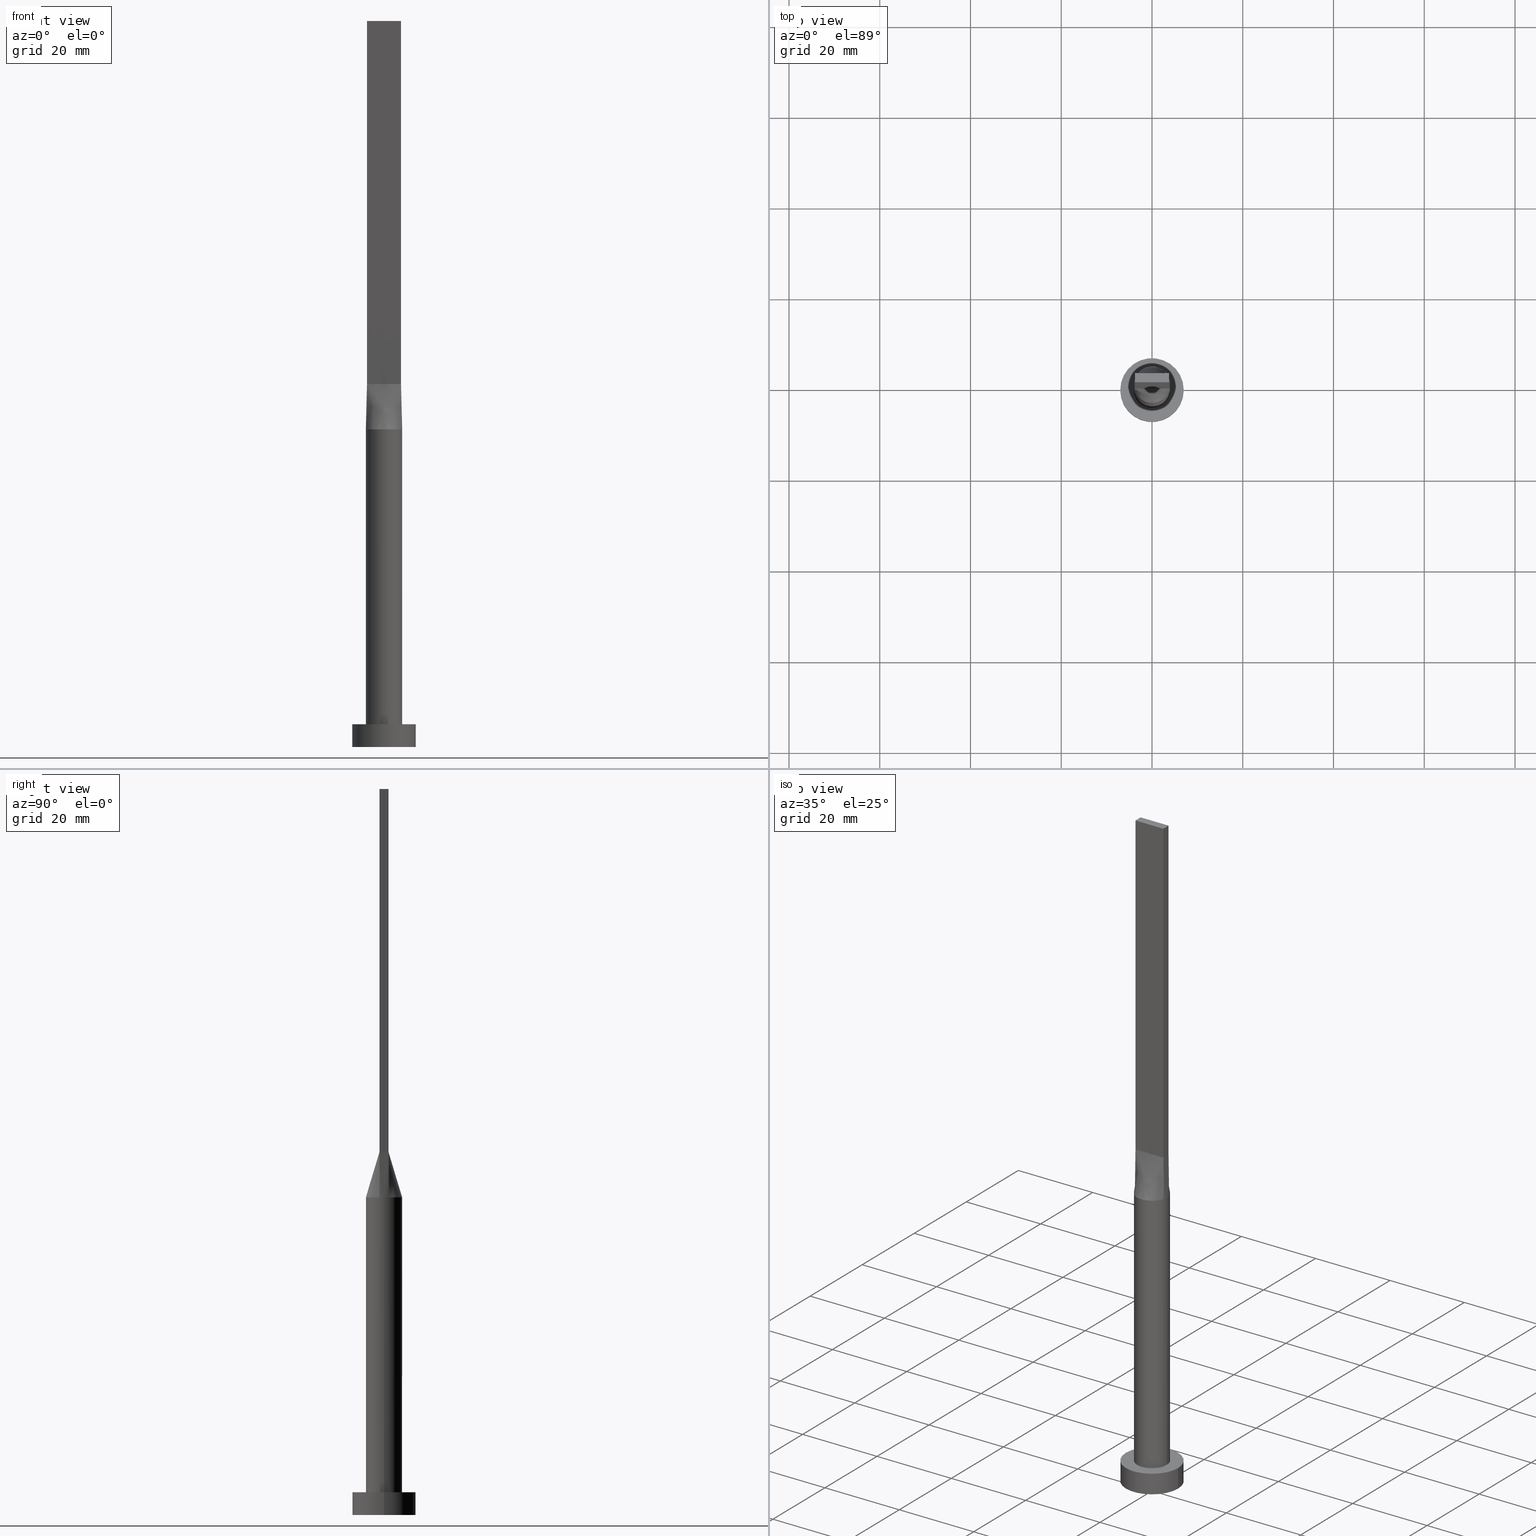
[diagram: canonical four-view strip — front | top / right | iso, engineering-drawing reading convention]
A machine part, canonical four-view strip (front | top / right | iso — engineering-drawing reading convention). The complete STEP part file that produces these views, byte-faithful:
ISO-10303-21;
HEADER;
FILE_DESCRIPTION (( 'STEP AP203' ),
    '1' );
FILE_NAME ('2704.STEP',
    '2023-02-13T09:36:03',
    ( '' ),
    ( '' ),
    'SwSTEP 2.0',
    'SolidWorks 2019',
    '' );
FILE_SCHEMA (( 'CONFIG_CONTROL_DESIGN' ));
ENDSEC;

DATA;
#1 = CARTESIAN_POINT ( 'NONE',  ( 3.750000000000000000, -0.9999999999999997780, 160.0000000000000000 ) ) ;
#2 = VECTOR ( 'NONE', #314, 1000.000000000000000 ) ;
#3 = ORIENTED_EDGE ( 'NONE', *, *, #150, .T. ) ;
#4 = APPLICATION_PROTOCOL_DEFINITION ( 'international standard', 'config_control_design', 1994, #134 ) ;
#5 = DIRECTION ( 'NONE',  ( -1.000000000000000000, 0.000000000000000000, 0.000000000000000000 ) ) ;
#6 = VERTEX_POINT ( 'NONE', #203 ) ;
#7 = LINE ( 'NONE', #278, #491 ) ;
#8 = DIRECTION ( 'NONE',  ( -0.000000000000000000, -0.000000000000000000, -1.000000000000000000 ) ) ;
#9 =( NAMED_UNIT ( * ) SI_UNIT ( $, .STERADIAN. ) SOLID_ANGLE_UNIT ( ) );
#10 = LINE ( 'NONE', #549, #86 ) ;
#11 = ORIENTED_EDGE ( 'NONE', *, *, #418, .F. ) ;
#12 = EDGE_CURVE ( 'NONE', #388, #6, #452, .T. ) ;
#13 = PERSON_AND_ORGANIZATION ( #241, #344 ) ;
#14 = CARTESIAN_POINT ( 'NONE',  ( 2.187499999999999556, 1.000000000000000000, 79.99999999999998579 ) ) ;
#15 = ORIENTED_EDGE ( 'NONE', *, *, #418, .T. ) ;
#16 = APPROVAL_DATE_TIME ( #48, #244 ) ;
#17 = EDGE_CURVE ( 'NONE', #472, #421, #157, .T. ) ;
#18 = EDGE_CURVE ( 'NONE', #197, #148, #483, .T. ) ;
#19 = CARTESIAN_POINT ( 'NONE',  ( -2.500000000000000444, 1.000000000000000000, 79.99999999999998579 ) ) ;
#20 = ORIENTED_EDGE ( 'NONE', *, *, #457, .T. ) ;
#21 = COORDINATED_UNIVERSAL_TIME_OFFSET ( 1, 0, .AHEAD. ) ;
#22 = VERTEX_POINT ( 'NONE', #480 ) ;
#23 = ORIENTED_EDGE ( 'NONE', *, *, #142, .T. ) ;
#24 = COORDINATED_UNIVERSAL_TIME_OFFSET ( 1, 0, .AHEAD. ) ;
#25 = ORIENTED_EDGE ( 'NONE', *, *, #394, .T. ) ;
#26 = CARTESIAN_POINT ( 'NONE',  ( 0.5121855420560009753, 4.000000000000000888, 70.00000000000000000 ) ) ;
#27 = AXIS2_PLACEMENT_3D ( 'NONE', #455, #453, #5 ) ;
#28 = CARTESIAN_POINT ( 'NONE',  ( 3.953459813730019423, -0.6987003947724502728, 70.00000000000001421 ) ) ;
#29 = CC_DESIGN_PERSON_AND_ORGANIZATION_ASSIGNMENT ( #201, #413, ( #159 ) ) ;
#30 = CARTESIAN_POINT ( 'NONE',  ( -4.000000000000000000, 0.3494497975066826467, 69.99999999999998579 ) ) ;
#31 = VECTOR ( 'NONE', #352, 1000.000000000000000 ) ;
#32 = CIRCLE ( 'NONE', #52, 4.000000000000000000 ) ;
#33 = CARTESIAN_POINT ( 'NONE',  ( -0.3125000000000197065, -0.9999999999999993339, 80.00000000000000000 ) ) ;
#34 = DIRECTION ( 'NONE',  ( -0.000000000000000000, -0.000000000000000000, -1.000000000000000000 ) ) ;
#35 = CARTESIAN_POINT ( 'NONE',  ( 1.249999999999982236, -0.9999999999999995559, 79.99999999999998579 ) ) ;
#36 = CARTESIAN_POINT ( 'NONE',  ( -3.750000000000000000, -0.9999999999999991118, 160.0000000000000000 ) ) ;
#37 = CARTESIAN_POINT ( 'NONE',  ( -2.187500000000013323, -0.9999999999999993339, 79.99999999999998579 ) ) ;
#38 = LINE ( 'NONE', #358, #482 ) ;
#39 = CARTESIAN_POINT ( 'NONE',  ( 3.749999999999999556, -0.6666666666666661856, 79.99999999999998579 ) ) ;
#40 = APPROVAL_PERSON_ORGANIZATION ( #345, #511, #566 ) ;
#41 = EDGE_CURVE ( 'NONE', #472, #430, #343, .T. ) ;
#42 = DIRECTION ( 'NONE',  ( 0.000000000000000000, 0.000000000000000000, 1.000000000000000000 ) ) ;
#43 = FACE_BOUND ( 'NONE', #297, .T. ) ;
#44 = CARTESIAN_POINT ( 'NONE',  ( 0.000000000000000000, 0.000000000000000000, 0.000000000000000000 ) ) ;
#45 = FACE_OUTER_BOUND ( 'NONE', #470, .T. ) ;
#46 = AXIS2_PLACEMENT_3D ( 'NONE', #443, #485, #263 ) ;
#47 = ORIENTED_EDGE ( 'NONE', *, *, #12, .F. ) ;
#48 = DATE_AND_TIME ( #424, #328 ) ;
#49 = VECTOR ( 'NONE', #368, 1000.000000000000114 ) ;
#50 = CC_DESIGN_PERSON_AND_ORGANIZATION_ASSIGNMENT ( #560, #522, ( #365 ) ) ;
#51 = CARTESIAN_POINT ( 'NONE',  ( 3.864939758404985160, 1.030650602241328873, 70.00000000000000000 ) ) ;
#52 = AXIS2_PLACEMENT_3D ( 'NONE', #224, #262, #445 ) ;
#53 = DIRECTION ( 'NONE',  ( 1.000000000000000000, 0.000000000000000000, -0.000000000000000000 ) ) ;
#54 = LINE ( 'NONE', #100, #49 ) ;
#55 = ORIENTED_EDGE ( 'NONE', *, *, #317, .T. ) ;
#56 = CARTESIAN_POINT ( 'NONE',  ( 3.865212754195084699, 1.030724393897464841, 70.00000000000000000 ) ) ;
#57 = DIRECTION ( 'NONE',  ( 1.000000000000000000, 0.000000000000000000, 0.000000000000000000 ) ) ;
#58 = ORIENTED_EDGE ( 'NONE', *, *, #577, .T. ) ;
#59 = DIRECTION ( 'NONE',  ( -1.000000000000000000, -0.000000000000000000, -0.000000000000000000 ) ) ;
#60 = EDGE_LOOP ( 'NONE', ( #25, #419, #558, #15 ) ) ;
#61 = EDGE_CURVE ( 'NONE', #141, #547, #78, .T. ) ;
#62 = CIRCLE ( 'NONE', #490, 4.000000000000000000 ) ;
#63 = COORDINATED_UNIVERSAL_TIME_OFFSET ( 1, 0, .AHEAD. ) ;
#64 = ADVANCED_FACE ( 'NONE', ( #222 ), #539, .T. ) ;
#65 = CARTESIAN_POINT ( 'NONE',  ( -1.562500000000000444, 1.000000000000000000, 79.99999999999998579 ) ) ;
#66 = EDGE_LOOP ( 'NONE', ( #544, #23, #332, #205, #208 ) ) ;
#67 = CALENDAR_DATE ( 2023, 13, 2 ) ;
#68 = ORIENTED_EDGE ( 'NONE', *, *, #377, .T. ) ;
#69 = EDGE_CURVE ( 'NONE', #421, #472, #518, .T. ) ;
#70 = ORIENTED_EDGE ( 'NONE', *, *, #259, .T. ) ;
#71 = EDGE_LOOP ( 'NONE', ( #20, #11, #468, #282 ) ) ;
#72 = CARTESIAN_POINT ( 'NONE',  ( -3.749999999999999556, -0.6666666666666657415, 79.99999999999998579 ) ) ;
#73 = CARTESIAN_POINT ( 'NONE',  ( 2.346407003458400364, -3.270103945996944095, 70.00000000000001421 ) ) ;
#74 = PERSON_AND_ORGANIZATION ( #241, #344 ) ;
#75 = CARTESIAN_POINT ( 'NONE',  ( -0.6250000000000005551, 1.000000000000000000, 79.99999999999998579 ) ) ;
#76 = CARTESIAN_POINT ( 'NONE',  ( 2.187499999999986677, -0.9999999999999995559, 79.99999999999998579 ) ) ;
#77 = CARTESIAN_POINT ( 'NONE',  ( -3.750000000000000000, 1.000000000000000000, 80.00000000000000000 ) ) ;
#78 = LINE ( 'NONE', #310, #249 ) ;
#79 = CARTESIAN_POINT ( 'NONE',  ( -3.750000000000000000, -0.9999999999999991118, 80.00000000000000000 ) ) ;
#80 = CARTESIAN_POINT ( 'NONE',  ( 1.023074425454087555, -3.898373771260455811, 70.00000000000001421 ) ) ;
#81 = DIRECTION ( 'NONE',  ( -0.000000000000000000, 1.000000000000000000, -0.000000000000000000 ) ) ;
#82 = AXIS2_PLACEMENT_3D ( 'NONE', #524, #530, #402 ) ;
#83 = FACE_OUTER_BOUND ( 'NONE', #243, .T. ) ;
#84 = DIRECTION ( 'NONE',  ( 1.000000000000000000, -8.673617379884035472E-17, 0.000000000000000000 ) ) ;
#85 = PRODUCT_DEFINITION_SHAPE ( 'NONE', 'NONE',  #159 ) ;
#86 = VECTOR ( 'NONE', #152, 1000.000000000000000 ) ;
#87 = CARTESIAN_POINT ( 'NONE',  ( 3.750000000000000000, 1.000000000000000000, 80.00000000000000000 ) ) ;
#88 = LOCAL_TIME ( 10, 36, 3.000000000000000000, #21 ) ;
#89 = VERTEX_POINT ( 'NONE', #532 ) ;
#90 = FACE_OUTER_BOUND ( 'NONE', #463, .T. ) ;
#91 = CARTESIAN_POINT ( 'NONE',  ( -3.267840578657194239, 2.338604872288698289, 70.00000000000001421 ) ) ;
#92 = DIRECTION ( 'NONE',  ( 0.000000000000000000, 0.000000000000000000, 1.000000000000000000 ) ) ;
#93 = CLOSED_SHELL ( 'NONE', ( #122, #448, #477, #186, #494, #151, #64, #103, #252, #194, #579, #173, #294, #538, #315 ) ) ;
#94 = ORIENTED_EDGE ( 'NONE', *, *, #357, .F. ) ;
#95 = CARTESIAN_POINT ( 'NONE',  ( 3.750000000000000000, -0.9999999999999997780, 160.0000000000000000 ) ) ;
#96 = CARTESIAN_POINT ( 'NONE',  ( 3.749999999999999556, 0.3333333333333339810, 79.99999999999998579 ) ) ;
#97 = VERTEX_POINT ( 'NONE', #487 ) ;
#98 = AXIS2_PLACEMENT_3D ( 'NONE', #407, #578, #492 ) ;
#99 = DIRECTION ( 'NONE',  ( -1.000000000000000000, 0.000000000000000000, 0.000000000000000000 ) ) ;
#100 = CARTESIAN_POINT ( 'NONE',  ( -3.807469879202492802, -1.015325301120663548, 75.00000000000001421 ) ) ;
#101 = DIRECTION ( 'NONE',  ( 1.000000000000000000, 0.000000000000000000, 0.000000000000000000 ) ) ;
#102 = CARTESIAN_POINT ( 'NONE',  ( -3.653499896451231521, 1.673258289339058180, 70.00000000000001421 ) ) ;
#103 = ADVANCED_FACE ( 'NONE', ( #83 ), #397, .T. ) ;
#104 = VERTEX_POINT ( 'NONE', #185 ) ;
#105 = DIRECTION ( 'NONE',  ( 0.000000000000000000, 0.000000000000000000, 1.000000000000000000 ) ) ;
#106 = CARTESIAN_POINT ( 'NONE',  ( -2.187500000000000444, 1.000000000000000000, 79.99999999999998579 ) ) ;
#107 = ORIENTED_EDGE ( 'NONE', *, *, #223, .T. ) ;
#108 = PERSON_AND_ORGANIZATION_ROLE ( 'classification_officer' ) ;
#109 = AXIS2_PLACEMENT_3D ( 'NONE', #327, #367, #192 ) ;
#110 = CARTESIAN_POINT ( 'NONE',  ( -3.267840578657194239, 2.338604872288698289, 70.00000000000001421 ) ) ;
#111 = EDGE_LOOP ( 'NONE', ( #153, #239, #431, #55 ) ) ;
#112 = DATE_TIME_ROLE ( 'classification_date' ) ;
#113 = EDGE_LOOP ( 'NONE', ( #277, #512, #340, #156 ) ) ;
#114 = CALENDAR_DATE ( 2023, 13, 2 ) ;
#115 = VERTEX_POINT ( 'NONE', #1 ) ;
#116 = APPROVAL_PERSON_ORGANIZATION ( #204, #574, #469 ) ;
#117 = EDGE_CURVE ( 'NONE', #148, #515, #576, .T. ) ;
#118 = CARTESIAN_POINT ( 'NONE',  ( -2.500000000000011102, -0.9999999999999991118, 79.99999999999998579 ) ) ;
#119 = CARTESIAN_POINT ( 'NONE',  ( 3.864939758404985160, 1.030650602241329539, 70.00000000000000000 ) ) ;
#120 = EDGE_CURVE ( 'NONE', #505, #22, #189, .T. ) ;
#121 = CARTESIAN_POINT ( 'NONE',  ( 3.750000000000000000, -1.000000000000000000, 80.00000000000000000 ) ) ;
#122 = ADVANCED_FACE ( 'NONE', ( #180 ), #542, .T. ) ;
#123 = CARTESIAN_POINT ( 'NONE',  ( -3.953459813730019423, 0.6987003947724497177, 70.00000000000001421 ) ) ;
#124 = CARTESIAN_POINT ( 'NONE',  ( -3.781952206537765981, -1.341853921743402900, 70.00000000000001421 ) ) ;
#125 = DIRECTION ( 'NONE',  ( 0.000000000000000000, 0.000000000000000000, 1.000000000000000000 ) ) ;
#126 = VECTOR ( 'NONE', #318, 1000.000000000000000 ) ;
#127 = DIRECTION ( 'NONE',  ( -0.000000000000000000, -0.000000000000000000, -1.000000000000000000 ) ) ;
#128 = PRODUCT_RELATED_PRODUCT_CATEGORY ( 'detail', '', ( #216 ) ) ;
#129 = PLANE ( 'NONE',  #212 ) ;
#130 = CARTESIAN_POINT ( 'NONE',  ( 3.781952206537765981, -1.341853921743404232, 70.00000000000001421 ) ) ;
#131 = CARTESIAN_POINT ( 'NONE',  ( 7.000000000000000000, 8.572527594031473190E-16, 0.000000000000000000 ) ) ;
#132 = PLANE ( 'NONE',  #176 ) ;
#133 = FACE_OUTER_BOUND ( 'NONE', #362, .T. ) ;
#134 = APPLICATION_CONTEXT ( 'configuration controlled 3d designs of mechanical parts and assemblies' ) ;
#135 = CC_DESIGN_PERSON_AND_ORGANIZATION_ASSIGNMENT ( #13, #198, ( #216 ) ) ;
#136 = AXIS2_PLACEMENT_3D ( 'NONE', #36, #541, #439 ) ;
#137 = CARTESIAN_POINT ( 'NONE',  ( -3.781952206537765537, 1.341853921743403788, 70.00000000000001421 ) ) ;
#138 = EDGE_LOOP ( 'NONE', ( #386, #226, #246, #209 ) ) ;
#139 = DIRECTION ( 'NONE',  ( 0.000000000000000000, 0.000000000000000000, 1.000000000000000000 ) ) ;
#140 = CARTESIAN_POINT ( 'NONE',  ( 0.000000000000000000, 0.000000000000000000, 70.00000000000000000 ) ) ;
#141 = VERTEX_POINT ( 'NONE', #143 ) ;
#142 = EDGE_CURVE ( 'NONE', #296, #104, #528, .T. ) ;
#143 = CARTESIAN_POINT ( 'NONE',  ( 3.865244591400370577, -1.030732999276501527, 70.00000000000000000 ) ) ;
#144 = VERTEX_POINT ( 'NONE', #500 ) ;
#145 = FACE_OUTER_BOUND ( 'NONE', #60, .T. ) ;
#146 = CARTESIAN_POINT ( 'NONE',  ( -3.750000000000000000, -0.9999999999999991118, 160.0000000000000000 ) ) ;
#147 = AXIS2_PLACEMENT_3D ( 'NONE', #529, #139, #171 ) ;
#148 = VERTEX_POINT ( 'NONE', #322 ) ;
#149 = VECTOR ( 'NONE', #235, 1000.000000000000114 ) ;
#150 = EDGE_CURVE ( 'NONE', #97, #430, #555, .T. ) ;
#151 = ADVANCED_FACE ( 'NONE', ( #45 ), #534, .T. ) ;
#152 = DIRECTION ( 'NONE',  ( 1.000000000000000000, -8.673617379884035472E-17, 0.000000000000000000 ) ) ;
#153 = ORIENTED_EDGE ( 'NONE', *, *, #18, .T. ) ;
#154 = DIRECTION ( 'NONE',  ( 0.000000000000000000, 0.000000000000000000, 1.000000000000000000 ) ) ;
#155 = CARTESIAN_POINT ( 'NONE',  ( -3.009488128496037529, 2.672487015486668671, 69.99999999999998579 ) ) ;
#156 = ORIENTED_EDGE ( 'NONE', *, *, #347, .F. ) ;
#157 = CIRCLE ( 'NONE', #46, 7.000000000000000000 ) ;
#158 = CARTESIAN_POINT ( 'NONE',  ( 3.124999999999999112, 1.000000000000000000, 79.99999999999998579 ) ) ;
#159 = PRODUCT_DEFINITION ( 'NEZN�M�', '', #365, #206 ) ;
#160 = DIRECTION ( 'NONE',  ( 0.000000000000000000, 0.000000000000000000, 1.000000000000000000 ) ) ;
#161 = APPROVAL_STATUS ( 'not_yet_approved' ) ;
#162 = ORIENTED_EDGE ( 'NONE', *, *, #259, .F. ) ;
#163 = ORIENTED_EDGE ( 'NONE', *, *, #383, .T. ) ;
#164 = UNCERTAINTY_MEASURE_WITH_UNIT (LENGTH_MEASURE( 1.000000000000000082E-05 ), #545, 'distance_accuracy_value', 'NONE');
#165 = CARTESIAN_POINT ( 'NONE',  ( -2.346407003458402141, -3.270103945996943651, 69.99999999999998579 ) ) ;
#166 = CARTESIAN_POINT ( 'NONE',  ( 2.499999999999999112, 1.000000000000000000, 79.99999999999998579 ) ) ;
#167 = EDGE_CURVE ( 'NONE', #456, #104, #54, .T. ) ;
#168 = CARTESIAN_POINT ( 'NONE',  ( -3.864939758404985604, -1.030650602241328206, 70.00000000000000000 ) ) ;
#169 = DIRECTION ( 'NONE',  ( 0.000000000000000000, 0.000000000000000000, 1.000000000000000000 ) ) ;
#170 = CARTESIAN_POINT ( 'NONE',  ( -1.940702937457744692, -3.532374760555929250, 70.00000000000000000 ) ) ;
#171 = DIRECTION ( 'NONE',  ( 1.000000000000000000, 0.000000000000000000, 0.000000000000000000 ) ) ;
#172 = CARTESIAN_POINT ( 'NONE',  ( 1.562499999999983569, -0.9999999999999995559, 79.99999999999998579 ) ) ;
#173 = ADVANCED_FACE ( 'NONE', ( #493 ), #273, .F. ) ;
#174 = B_SPLINE_SURFACE_WITH_KNOTS ( 'NONE', 3, 1, ( 
 ( #119, #564 ),
 ( #481, #479 ),
 ( #390, #158 ),
 ( #238, #166 ),
 ( #425, #14 ),
 ( #199, #378 ),
 ( #290, #331 ),
 ( #349, #346 ),
 ( #26, #202 ),
 ( #510, #420 ),
 ( #551, #75 ),
 ( #523, #373 ),
 ( #240, #65 ),
 ( #155, #106 ),
 ( #110, #19 ),
 ( #102, #334 ),
 ( #380, #467 ),
 ( #210, #462 ) ),
 .UNSPECIFIED., .F., .F., .F.,
 ( 4, 2, 2, 2, 2, 2, 2, 2, 4 ),
 ( 2, 2 ),
 ( 0.000000000000000000, 0.1250000000000000000, 0.2500000000000000000, 0.3750000000000000000, 0.5000000000000000000, 0.6250000000000000000, 0.7500000000000000000, 0.8750000000000000000, 1.000000000000000000 ),
 ( 0.000000000000000000, 1.000000000000000000 ),
 .UNSPECIFIED. ) ;
#175 = LINE ( 'NONE', #77, #31 ) ;
#176 = AXIS2_PLACEMENT_3D ( 'NONE', #225, #316, #580 ) ;
#177 = AXIS2_PLACEMENT_3D ( 'NONE', #501, #509, #275 ) ;
#178 = DIRECTION ( 'NONE',  ( 1.000000000000000000, 0.000000000000000000, 0.000000000000000000 ) ) ;
#179 = CARTESIAN_POINT ( 'NONE',  ( -3.750000000000000000, 1.000000000000000000, 160.0000000000000000 ) ) ;
#180 = FACE_OUTER_BOUND ( 'NONE', #191, .T. ) ;
#181 = CARTESIAN_POINT ( 'NONE',  ( 3.750000000000000000, 1.000000000000000000, 80.00000000000000000 ) ) ;
#182 = EDGE_CURVE ( 'NONE', #144, #456, #546, .T. ) ;
#183 = CARTESIAN_POINT ( 'NONE',  ( 3.865212754195084699, 1.030724393897464841, 70.00000000000000000 ) ) ;
#184 = DIRECTION ( 'NONE',  ( 1.000000000000000000, -6.217248937900876626E-15, 0.000000000000000000 ) ) ;
#185 = CARTESIAN_POINT ( 'NONE',  ( -3.865220763612065902, -1.030726602927787949, 70.00000000000000000 ) ) ;
#186 = ADVANCED_FACE ( 'NONE', ( #43, #411 ), #132, .T. ) ;
#187 = ORIENTED_EDGE ( 'NONE', *, *, #520, .T. ) ;
#188 = CARTESIAN_POINT ( 'NONE',  ( 4.000000000000000000, -1.256865613583667397E-17, 70.00000000000000000 ) ) ;
#189 = B_SPLINE_CURVE_WITH_KNOTS ( 'NONE', 3,
 ( #183, #276, #361, #537, #408, #450, #489, #234, #504, #543, #269, #190, #366, #193, #91, #406, #137, #319 ),
 .UNSPECIFIED., .F., .F.,
 ( 4, 2, 2, 2, 2, 2, 2, 2, 4 ),
 ( 0.000000000000000000, 0.1250000000000000000, 0.2500000000000000000, 0.3750000000000000000, 0.5000000000000000000, 0.6250000000000000000, 0.7500000000000000000, 0.8750000000000000000, 1.000000000000000000 ),
 .UNSPECIFIED. ) ;
#190 = CARTESIAN_POINT ( 'NONE',  ( -1.940702937457743138, 3.532374760555930582, 69.99999999999998579 ) ) ;
#191 = EDGE_LOOP ( 'NONE', ( #426, #163, #423, #162, #447, #288 ) ) ;
#192 = DIRECTION ( 'NONE',  ( 1.000000000000000000, 0.000000000000000000, 0.000000000000000000 ) ) ;
#193 = CARTESIAN_POINT ( 'NONE',  ( -3.009488128496037529, 2.672487015486668671, 69.99999999999998579 ) ) ;
#194 = ADVANCED_FACE ( 'NONE', ( #303 ), #174, .T. ) ;
#195 = CARTESIAN_POINT ( 'NONE',  ( -3.864939758404985604, -1.030650602241328428, 70.00000000000000000 ) ) ;
#196 = VECTOR ( 'NONE', #329, 1000.000000000000000 ) ;
#197 = VERTEX_POINT ( 'NONE', #257 ) ;
#198 = PERSON_AND_ORGANIZATION_ROLE ( 'design_owner' ) ;
#199 = CARTESIAN_POINT ( 'NONE',  ( 2.346407003458400808, 3.270103945996944983, 69.99999999999998579 ) ) ;
#200 = ORIENTED_EDGE ( 'NONE', *, *, #383, .F. ) ;
#201 = PERSON_AND_ORGANIZATION ( #241, #344 ) ;
#202 = CARTESIAN_POINT ( 'NONE',  ( 0.3124999999999995004, 1.000000000000000000, 80.00000000000000000 ) ) ;
#203 = CARTESIAN_POINT ( 'NONE',  ( -4.000000000000000000, 0.000000000000000000, 5.000000000000000000 ) ) ;
#204 = PERSON_AND_ORGANIZATION ( #241, #344 ) ;
#205 = ORIENTED_EDGE ( 'NONE', *, *, #377, .F. ) ;
#206 = DESIGN_CONTEXT ( 'detailed design', #526, 'design' ) ;
#207 = VECTOR ( 'NONE', #433, 1000.000000000000000 ) ;
#208 = ORIENTED_EDGE ( 'NONE', *, *, #502, .F. ) ;
#209 = ORIENTED_EDGE ( 'NONE', *, *, #167, .T. ) ;
#210 = CARTESIAN_POINT ( 'NONE',  ( -3.864939758404985604, 1.030650602241328428, 70.00000000000000000 ) ) ;
#211 = CARTESIAN_POINT ( 'NONE',  ( 3.749999999999999556, -0.3333333333333326487, 79.99999999999998579 ) ) ;
#212 = AXIS2_PLACEMENT_3D ( 'NONE', #405, #125, #569 ) ;
#213 = CARTESIAN_POINT ( 'NONE',  ( -3.999999999999999112, -0.3494497975066816475, 69.99999999999998579 ) ) ;
#214 = CARTESIAN_POINT ( 'NONE',  ( -0.5121855420560018635, -4.000000000000000000, 70.00000000000000000 ) ) ;
#215 = LINE ( 'NONE', #437, #291 ) ;
#216 = PRODUCT ( '2704', '2704', '', ( #285 ) ) ;
#217 = CARTESIAN_POINT ( 'NONE',  ( 3.653499896451230633, -1.673258289339059068, 70.00000000000001421 ) ) ;
#218 = FACE_OUTER_BOUND ( 'NONE', #113, .T. ) ;
#219 = CARTESIAN_POINT ( 'NONE',  ( -0.6250000000000193179, -0.9999999999999993339, 79.99999999999998579 ) ) ;
#220 = FACE_OUTER_BOUND ( 'NONE', #111, .T. ) ;
#221 =( GEOMETRIC_REPRESENTATION_CONTEXT ( 3 ) GLOBAL_UNCERTAINTY_ASSIGNED_CONTEXT ( ( #164 ) ) GLOBAL_UNIT_ASSIGNED_CONTEXT ( ( #545, #231, #9 ) ) REPRESENTATION_CONTEXT ( 'NONE', 'WORKASPACE' ) );
#222 = FACE_OUTER_BOUND ( 'NONE', #138, .T. ) ;
#223 = EDGE_CURVE ( 'NONE', #89, #515, #435, .T. ) ;
#224 = CARTESIAN_POINT ( 'NONE',  ( 0.000000000000000000, 0.000000000000000000, 5.000000000000000000 ) ) ;
#225 = CARTESIAN_POINT ( 'NONE',  ( 0.000000000000000000, 0.000000000000000000, 5.000000000000000000 ) ) ;
#226 = ORIENTED_EDGE ( 'NONE', *, *, #61, .T. ) ;
#227 = CARTESIAN_POINT ( 'NONE',  ( 3.750000000000000000, -0.9999999999999997780, 160.0000000000000000 ) ) ;
#228 = DIRECTION ( 'NONE',  ( 1.000000000000000000, 0.000000000000000000, -0.000000000000000000 ) ) ;
#229 = ORIENTED_EDGE ( 'NONE', *, *, #41, .F. ) ;
#230 = AXIS2_PLACEMENT_3D ( 'NONE', #415, #92, #57 ) ;
#231 =( NAMED_UNIT ( * ) PLANE_ANGLE_UNIT ( ) SI_UNIT ( $, .RADIAN. ) );
#232 = CIRCLE ( 'NONE', #382, 7.000000000000000000 ) ;
#233 = CC_DESIGN_SECURITY_CLASSIFICATION ( #372, ( #365 ) ) ;
#234 = CARTESIAN_POINT ( 'NONE',  ( 1.023074425454087999, 3.898373771260456255, 69.99999999999998579 ) ) ;
#235 = DIRECTION ( 'NONE',  ( 0.01149316269309400701, -0.003064843384824952107, 0.9999292544707033548 ) ) ;
#236 = CC_DESIGN_PERSON_AND_ORGANIZATION_ASSIGNMENT ( #389, #108, ( #372 ) ) ;
#237 = CARTESIAN_POINT ( 'NONE',  ( -3.750000000000000000, 1.000000000000000000, 160.0000000000000000 ) ) ;
#238 = CARTESIAN_POINT ( 'NONE',  ( 3.267840578657193795, 2.338604872288698289, 70.00000000000000000 ) ) ;
#239 = ORIENTED_EDGE ( 'NONE', *, *, #376, .T. ) ;
#240 = CARTESIAN_POINT ( 'NONE',  ( -2.346407003458401253, 3.270103945996944095, 70.00000000000001421 ) ) ;
#241 = PERSON ( 'NEUR�EN�', 'NEUR�EN�', 'NEUR�EN�', ('NEUR�EN�'), ('NEUR�EN�'), ('NEUR�EN�') ) ;
#242 = VECTOR ( 'NONE', #59, 1000.000000000000000 ) ;
#243 = EDGE_LOOP ( 'NONE', ( #299, #270, #187, #495, #384 ) ) ;
#244 = APPROVAL ( #465, 'NEUR�EN�' ) ;
#245 = CARTESIAN_POINT ( 'NONE',  ( -4.000000000000000000, 0.000000000000000000, 70.00000000000000000 ) ) ;
#246 = ORIENTED_EDGE ( 'NONE', *, *, #457, .F. ) ;
#247 = DATE_AND_TIME ( #114, #444 ) ;
#248 = EDGE_LOOP ( 'NONE', ( #107, #460, #274, #58 ) ) ;
#249 = VECTOR ( 'NONE', #568, 1000.000000000000114 ) ;
#250 = ORIENTED_EDGE ( 'NONE', *, *, #459, .T. ) ;
#251 = DATE_AND_TIME ( #67, #300 ) ;
#252 = ADVANCED_FACE ( 'NONE', ( #337 ), #563, .T. ) ;
#253 = ORIENTED_EDGE ( 'NONE', *, *, #120, .T. ) ;
#254 = ADVANCED_BREP_SHAPE_REPRESENTATION ( '2704', ( #464, #573 ), #221 ) ;
#255 = CARTESIAN_POINT ( 'NONE',  ( -3.750000000000000000, -0.9999999999999991118, 80.00000000000000000 ) ) ;
#256 = CARTESIAN_POINT ( 'NONE',  ( 2.499999999999988898, -0.9999999999999995559, 79.99999999999998579 ) ) ;
#257 = CARTESIAN_POINT ( 'NONE',  ( 3.750000000000000000, 1.000000000000000000, 160.0000000000000000 ) ) ;
#258 = CARTESIAN_POINT ( 'NONE',  ( -3.125000000000005773, -0.9999999999999991118, 79.99999999999998579 ) ) ;
#259 = EDGE_CURVE ( 'NONE', #296, #6, #393, .T. ) ;
#260 = LINE ( 'NONE', #227, #126 ) ;
#261 = CARTESIAN_POINT ( 'NONE',  ( 0.3124999999999803491, -0.9999999999999995559, 79.99999999999998579 ) ) ;
#262 = DIRECTION ( 'NONE',  ( 0.000000000000000000, 0.000000000000000000, 1.000000000000000000 ) ) ;
#263 = DIRECTION ( 'NONE',  ( 1.000000000000000000, 0.000000000000000000, 0.000000000000000000 ) ) ;
#264 = CARTESIAN_POINT ( 'NONE',  ( 0.000000000000000000, 0.000000000000000000, 70.00000000000000000 ) ) ;
#265 = CARTESIAN_POINT ( 'NONE',  ( 3.864939758404985160, -1.030650602241329539, 70.00000000000000000 ) ) ;
#266 = CARTESIAN_POINT ( 'NONE',  ( 7.000000000000000000, 8.572527594031473190E-16, 5.000000000000000000 ) ) ;
#267 = AXIS2_PLACEMENT_3D ( 'NONE', #237, #228, #446 ) ;
#268 = CC_DESIGN_APPROVAL ( #574, ( #372 ) ) ;
#269 = CARTESIAN_POINT ( 'NONE',  ( -1.023074425454088221, 3.898373771260455811, 70.00000000000001421 ) ) ;
#270 = ORIENTED_EDGE ( 'NONE', *, *, #271, .T. ) ;
#271 = EDGE_CURVE ( 'NONE', #552, #505, #62, .T. ) ;
#272 = CARTESIAN_POINT ( 'NONE',  ( 4.000000000000000000, 4.898587196589412829E-16, 5.000000000000000000 ) ) ;
#273 = PLANE ( 'NONE',  #267 ) ;
#274 = ORIENTED_EDGE ( 'NONE', *, *, #18, .F. ) ;
#275 = DIRECTION ( 'NONE',  ( 0.000000000000000000, -0.000000000000000000, -1.000000000000000000 ) ) ;
#276 = CARTESIAN_POINT ( 'NONE',  ( 3.781952206537764205, 1.341853921743403788, 70.00000000000001421 ) ) ;
#277 = ORIENTED_EDGE ( 'NONE', *, *, #17, .F. ) ;
#278 = CARTESIAN_POINT ( 'NONE',  ( 3.750000000000000000, 1.000000000000000000, 160.0000000000000000 ) ) ;
#279 = EDGE_CURVE ( 'NONE', #144, #115, #10, .T. ) ;
#280 = VECTOR ( 'NONE', #84, 1000.000000000000000 ) ;
#281 = DIRECTION ( 'NONE',  ( 0.000000000000000000, 0.000000000000000000, 1.000000000000000000 ) ) ;
#282 = ORIENTED_EDGE ( 'NONE', *, *, #182, .T. ) ;
#283 = FACE_OUTER_BOUND ( 'NONE', #248, .T. ) ;
#284 = CARTESIAN_POINT ( 'NONE',  ( 3.953459813730020311, 0.6987003947724492736, 70.00000000000000000 ) ) ;
#285 = MECHANICAL_CONTEXT ( 'NONE', #134, 'mechanical' ) ;
#286 = CARTESIAN_POINT ( 'NONE',  ( -3.750000000000000000, 1.000000000000000000, 80.00000000000000000 ) ) ;
#287 = AXIS2_PLACEMENT_3D ( 'NONE', #497, #281, #417 ) ;
#288 = ORIENTED_EDGE ( 'NONE', *, *, #120, .F. ) ;
#289 = PERSON_AND_ORGANIZATION ( #241, #344 ) ;
#290 = CARTESIAN_POINT ( 'NONE',  ( 1.940702937457743582, 3.532374760555930582, 70.00000000000000000 ) ) ;
#291 = VECTOR ( 'NONE', #442, 1000.000000000000000 ) ;
#292 = ORIENTED_EDGE ( 'NONE', *, *, #182, .F. ) ;
#293 = AXIS2_PLACEMENT_3D ( 'NONE', #363, #535, #488 ) ;
#294 = ADVANCED_FACE ( 'NONE', ( #507 ), #409, .F. ) ;
#295 = APPROVAL_STATUS ( 'not_yet_approved' ) ;
#296 = VERTEX_POINT ( 'NONE', #360 ) ;
#297 = EDGE_LOOP ( 'NONE', ( #428, #47 ) ) ;
#298 = AXIS2_PLACEMENT_3D ( 'NONE', #140, #371, #458 ) ;
#299 = ORIENTED_EDGE ( 'NONE', *, *, #351, .T. ) ;
#300 = LOCAL_TIME ( 10, 36, 3.000000000000000000, #392 ) ;
#301 = CARTESIAN_POINT ( 'NONE',  ( -3.749999999999999556, 0.6666666666666669627, 79.99999999999998579 ) ) ;
#302 = CARTESIAN_POINT ( 'NONE',  ( 0.5121855420560003092, -3.999999999999999112, 69.99999999999998579 ) ) ;
#303 = FACE_OUTER_BOUND ( 'NONE', #374, .T. ) ;
#304 = CARTESIAN_POINT ( 'NONE',  ( 3.999999999999999112, 0.3494497975066819251, 69.99999999999998579 ) ) ;
#305 = DIRECTION ( 'NONE',  ( 1.000000000000000000, 0.000000000000000000, 0.000000000000000000 ) ) ;
#306 = CARTESIAN_POINT ( 'NONE',  ( -3.267840578657194239, -2.338604872288696956, 70.00000000000000000 ) ) ;
#307 = CIRCLE ( 'NONE', #338, 4.000000000000000000 ) ;
#308 = CIRCLE ( 'NONE', #109, 4.000000000000000000 ) ;
#309 = CARTESIAN_POINT ( 'NONE',  ( -3.750000000000000000, -0.9999999999999991118, 80.00000000000000000 ) ) ;
#310 = CARTESIAN_POINT ( 'NONE',  ( 3.807469879202492802, -1.015325301120664214, 75.00000000000001421 ) ) ;
#311 = LINE ( 'NONE', #571, #2 ) ;
#312 = CC_DESIGN_DATE_AND_TIME_ASSIGNMENT ( #471, #112, ( #372 ) ) ;
#313 = CARTESIAN_POINT ( 'NONE',  ( 3.124999999999993783, -0.9999999999999995559, 79.99999999999998579 ) ) ;
#314 = DIRECTION ( 'NONE',  ( 0.000000000000000000, 1.000000000000000000, 0.000000000000000000 ) ) ;
#315 = ADVANCED_FACE ( 'NONE', ( #220 ), #129, .T. ) ;
#316 = DIRECTION ( 'NONE',  ( 0.000000000000000000, 0.000000000000000000, 1.000000000000000000 ) ) ;
#317 = EDGE_CURVE ( 'NONE', #115, #197, #311, .T. ) ;
#318 = DIRECTION ( 'NONE',  ( -0.000000000000000000, -0.000000000000000000, -1.000000000000000000 ) ) ;
#319 = CARTESIAN_POINT ( 'NONE',  ( -3.865236553917747120, 1.030730781768519622, 70.00000000000000000 ) ) ;
#320 = ORIENTED_EDGE ( 'NONE', *, *, #69, .T. ) ;
#321 = DIRECTION ( 'NONE',  ( 0.000000000000000000, -1.000000000000000000, 0.000000000000000000 ) ) ;
#322 = CARTESIAN_POINT ( 'NONE',  ( -3.750000000000000000, 1.000000000000000000, 160.0000000000000000 ) ) ;
#323 = ORIENTED_EDGE ( 'NONE', *, *, #347, .T. ) ;
#324 = CARTESIAN_POINT ( 'NONE',  ( 3.750000000000000000, -0.9999999999999997780, 80.00000000000000000 ) ) ;
#325 = AXIS2_PLACEMENT_3D ( 'NONE', #381, #160, #178 ) ;
#326 = CARTESIAN_POINT ( 'NONE',  ( 3.749999999999999556, 0.6666666666666670737, 79.99999999999998579 ) ) ;
#327 = CARTESIAN_POINT ( 'NONE',  ( 0.000000000000000000, 0.000000000000000000, 70.00000000000000000 ) ) ;
#328 = LOCAL_TIME ( 10, 36, 3.000000000000000000, #63 ) ;
#329 = DIRECTION ( 'NONE',  ( -0.000000000000000000, -0.000000000000000000, -1.000000000000000000 ) ) ;
#330 = CARTESIAN_POINT ( 'NONE',  ( 0.000000000000000000, 0.000000000000000000, 0.000000000000000000 ) ) ;
#331 = CARTESIAN_POINT ( 'NONE',  ( 1.249999999999999556, 1.000000000000000000, 79.99999999999998579 ) ) ;
#332 = ORIENTED_EDGE ( 'NONE', *, *, #167, .F. ) ;
#333 = PLANE ( 'NONE',  #473 ) ;
#334 = CARTESIAN_POINT ( 'NONE',  ( -3.125000000000000000, 1.000000000000000000, 79.99999999999998579 ) ) ;
#335 = EDGE_LOOP ( 'NONE', ( #320, #339 ) ) ;
#336 = APPROVAL_DATE_TIME ( #513, #511 ) ;
#337 = FACE_OUTER_BOUND ( 'NONE', #66, .T. ) ;
#338 = AXIS2_PLACEMENT_3D ( 'NONE', #264, #42, #184 ) ;
#339 = ORIENTED_EDGE ( 'NONE', *, *, #17, .T. ) ;
#340 = ORIENTED_EDGE ( 'NONE', *, *, #395, .T. ) ;
#341 = ORIENTED_EDGE ( 'NONE', *, *, #376, .F. ) ;
#342 = DATE_TIME_ROLE ( 'creation_date' ) ;
#343 = LINE ( 'NONE', #478, #498 ) ;
#344 = ORGANIZATION ( 'NEUR�EN�', 'NEUR�EN�', '' ) ;
#345 = PERSON_AND_ORGANIZATION ( #241, #344 ) ;
#346 = CARTESIAN_POINT ( 'NONE',  ( 0.6249999999999994449, 1.000000000000000000, 79.99999999999998579 ) ) ;
#347 = EDGE_CURVE ( 'NONE', #421, #97, #215, .T. ) ;
#348 = CARTESIAN_POINT ( 'NONE',  ( 3.750000000000000000, -0.9999999999999997780, 80.00000000000000000 ) ) ;
#349 = CARTESIAN_POINT ( 'NONE',  ( 1.023074425454087999, 3.898373771260456255, 69.99999999999998579 ) ) ;
#350 = CARTESIAN_POINT ( 'NONE',  ( -1.562500000000016653, -0.9999999999999993339, 79.99999999999998579 ) ) ;
#351 = EDGE_CURVE ( 'NONE', #141, #552, #307, .T. ) ;
#352 = DIRECTION ( 'NONE',  ( 0.000000000000000000, -1.000000000000000000, 0.000000000000000000 ) ) ;
#353 = CARTESIAN_POINT ( 'NONE',  ( -1.250000000000017764, -0.9999999999999993339, 79.99999999999998579 ) ) ;
#354 = VECTOR ( 'NONE', #321, 1000.000000000000000 ) ;
#355 = CYLINDRICAL_SURFACE ( 'NONE', #293, 7.000000000000000000 ) ;
#356 = CARTESIAN_POINT ( 'NONE',  ( -1.023074425454088887, -3.898373771260456255, 69.99999999999998579 ) ) ;
#357 = EDGE_CURVE ( 'NONE', #104, #141, #403, .T. ) ;
#358 = CARTESIAN_POINT ( 'NONE',  ( 4.000000000000000000, 4.898587196589412829E-16, 70.00000000000000000 ) ) ;
#359 = CARTESIAN_POINT ( 'NONE',  ( -3.750000000000000000, 1.000000000000000000, 160.0000000000000000 ) ) ;
#360 = CARTESIAN_POINT ( 'NONE',  ( -4.000000000000000000, -2.459132308497027359E-16, 70.00000000000000000 ) ) ;
#361 = CARTESIAN_POINT ( 'NONE',  ( 3.653499896451231521, 1.673258289339057958, 70.00000000000000000 ) ) ;
#362 = EDGE_LOOP ( 'NONE', ( #229, #556, #323, #3 ) ) ;
#363 = CARTESIAN_POINT ( 'NONE',  ( 0.000000000000000000, 0.000000000000000000, 5.000000000000000000 ) ) ;
#364 = VECTOR ( 'NONE', #81, 1000.000000000000000 ) ;
#365 = PRODUCT_DEFINITION_FORMATION_WITH_SPECIFIED_SOURCE ( 'LIBOVOLN�', '', #216, .NOT_KNOWN. ) ;
#366 = CARTESIAN_POINT ( 'NONE',  ( -2.346407003458401253, 3.270103945996944095, 70.00000000000001421 ) ) ;
#367 = DIRECTION ( 'NONE',  ( 0.000000000000000000, 0.000000000000000000, 1.000000000000000000 ) ) ;
#368 = DIRECTION ( 'NONE',  ( -0.01149316269309400701, -0.003064843384825017159, -0.9999292544707033548 ) ) ;
#369 = ORIENTED_EDGE ( 'NONE', *, *, #395, .F. ) ;
#370 = PLANE ( 'NONE',  #177 ) ;
#371 = DIRECTION ( 'NONE',  ( -0.000000000000000000, -0.000000000000000000, -1.000000000000000000 ) ) ;
#372 = SECURITY_CLASSIFICATION ( '', '', #516 ) ;
#373 = CARTESIAN_POINT ( 'NONE',  ( -1.250000000000000444, 1.000000000000000000, 79.99999999999998579 ) ) ;
#374 = EDGE_LOOP ( 'NONE', ( #253, #557, #379, #474 ) ) ;
#375 = APPLICATION_PROTOCOL_DEFINITION ( 'international standard', 'config_control_design', 1994, #526 ) ;
#376 = EDGE_CURVE ( 'NONE', #148, #144, #575, .T. ) ;
#377 = EDGE_CURVE ( 'NONE', #515, #456, #175, .T. ) ;
#378 = CARTESIAN_POINT ( 'NONE',  ( 1.562499999999999556, 1.000000000000000000, 79.99999999999998579 ) ) ;
#379 = ORIENTED_EDGE ( 'NONE', *, *, #223, .F. ) ;
#380 = CARTESIAN_POINT ( 'NONE',  ( -3.781952206537765537, 1.341853921743403788, 70.00000000000001421 ) ) ;
#381 = CARTESIAN_POINT ( 'NONE',  ( 0.000000000000000000, 0.000000000000000000, 5.000000000000000000 ) ) ;
#382 = AXIS2_PLACEMENT_3D ( 'NONE', #581, #401, #533 ) ;
#383 = EDGE_CURVE ( 'NONE', #552, #388, #38, .T. ) ;
#384 = ORIENTED_EDGE ( 'NONE', *, *, #61, .F. ) ;
#385 = PERSON_AND_ORGANIZATION_ROLE ( 'creator' ) ;
#386 = ORIENTED_EDGE ( 'NONE', *, *, #357, .T. ) ;
#387 = APPROVAL_DATE_TIME ( #247, #574 ) ;
#388 = VERTEX_POINT ( 'NONE', #272 ) ;
#389 = PERSON_AND_ORGANIZATION ( #241, #344 ) ;
#390 = CARTESIAN_POINT ( 'NONE',  ( 3.653499896451231521, 1.673258289339057958, 70.00000000000000000 ) ) ;
#391 = CARTESIAN_POINT ( 'NONE',  ( -3.009488128496037529, -2.672487015486668227, 70.00000000000000000 ) ) ;
#392 = COORDINATED_UNIVERSAL_TIME_OFFSET ( 1, 0, .AHEAD. ) ;
#393 = LINE ( 'NONE', #245, #207 ) ;
#394 = EDGE_CURVE ( 'NONE', #547, #89, #486, .T. ) ;
#395 = EDGE_CURVE ( 'NONE', #430, #97, #232, .T. ) ;
#396 = CARTESIAN_POINT ( 'NONE',  ( 3.864939758404985604, -1.030650602241328873, 70.00000000000000000 ) ) ;
#397 = B_SPLINE_SURFACE_WITH_KNOTS ( 'NONE', 3, 1, ( 
 ( #265, #121 ),
 ( #28, #39 ),
 ( #561, #211 ),
 ( #304, #96 ),
 ( #284, #326 ),
 ( #51, #87 ) ),
 .UNSPECIFIED., .F., .F., .F.,
 ( 4, 2, 4 ),
 ( 2, 2 ),
 ( 0.000000000000000000, 0.5000000000000000000, 1.000000000000000000 ),
 ( 0.000000000000000000, 1.000000000000000000 ),
 .UNSPECIFIED. ) ;
#398 = CARTESIAN_POINT ( 'NONE',  ( -7.000000000000000000, 0.000000000000000000, 5.000000000000000000 ) ) ;
#399 = CARTESIAN_POINT ( 'NONE',  ( 3.437499999999996447, -0.9999999999999995559, 79.99999999999998579 ) ) ;
#400 = VECTOR ( 'NONE', #8, 1000.000000000000000 ) ;
#401 = DIRECTION ( 'NONE',  ( 0.000000000000000000, 0.000000000000000000, 1.000000000000000000 ) ) ;
#402 = DIRECTION ( 'NONE',  ( 1.000000000000000000, 0.000000000000000000, 0.000000000000000000 ) ) ;
#403 = CIRCLE ( 'NONE', #147, 4.000000000000000000 ) ;
#404 = AXIS2_PLACEMENT_3D ( 'NONE', #44, #154, #53 ) ;
#405 = CARTESIAN_POINT ( 'NONE',  ( 0.000000000000000000, 0.000000000000000000, 160.0000000000000000 ) ) ;
#406 = CARTESIAN_POINT ( 'NONE',  ( -3.653499896451231521, 1.673258289339058180, 70.00000000000001421 ) ) ;
#407 = CARTESIAN_POINT ( 'NONE',  ( 0.000000000000000000, 0.000000000000000000, 5.000000000000000000 ) ) ;
#408 = CARTESIAN_POINT ( 'NONE',  ( 3.009488128496037085, 2.672487015486669115, 70.00000000000000000 ) ) ;
#409 = PLANE ( 'NONE',  #136 ) ;
#410 = VECTOR ( 'NONE', #521, 1000.000000000000000 ) ;
#411 = FACE_OUTER_BOUND ( 'NONE', #335, .T. ) ;
#412 = ORIENTED_EDGE ( 'NONE', *, *, #351, .F. ) ;
#413 = PERSON_AND_ORGANIZATION_ROLE ( 'creator' ) ;
#414 = LOCAL_TIME ( 10, 36, 3.000000000000000000, #24 ) ;
#415 = CARTESIAN_POINT ( 'NONE',  ( 0.000000000000000000, 0.000000000000000000, 70.00000000000000000 ) ) ;
#416 = DIRECTION ( 'NONE',  ( -0.01149316269309396538, -0.003064843384824995909, 0.9999292544707033548 ) ) ;
#417 = DIRECTION ( 'NONE',  ( 1.000000000000000000, 0.000000000000000000, 0.000000000000000000 ) ) ;
#418 = EDGE_CURVE ( 'NONE', #115, #547, #260, .T. ) ;
#419 = ORIENTED_EDGE ( 'NONE', *, *, #577, .F. ) ;
#420 = CARTESIAN_POINT ( 'NONE',  ( -0.3125000000000004996, 1.000000000000000000, 79.99999999999998579 ) ) ;
#421 = VERTEX_POINT ( 'NONE', #398 ) ;
#422 = CARTESIAN_POINT ( 'NONE',  ( -3.749999999999999556, 0.3333333333333338144, 79.99999999999998579 ) ) ;
#423 = ORIENTED_EDGE ( 'NONE', *, *, #12, .T. ) ;
#424 = CALENDAR_DATE ( 2023, 13, 2 ) ;
#425 = CARTESIAN_POINT ( 'NONE',  ( 3.009488128496037085, 2.672487015486669115, 70.00000000000000000 ) ) ;
#426 = ORIENTED_EDGE ( 'NONE', *, *, #271, .F. ) ;
#427 = CALENDAR_DATE ( 2023, 13, 2 ) ;
#428 = ORIENTED_EDGE ( 'NONE', *, *, #459, .F. ) ;
#429 = VECTOR ( 'NONE', #416, 1000.000000000000114 ) ;
#430 = VERTEX_POINT ( 'NONE', #131 ) ;
#431 = ORIENTED_EDGE ( 'NONE', *, *, #279, .T. ) ;
#432 = CALENDAR_DATE ( 2023, 13, 2 ) ;
#433 = DIRECTION ( 'NONE',  ( -0.000000000000000000, -0.000000000000000000, -1.000000000000000000 ) ) ;
#434 = CARTESIAN_POINT ( 'NONE',  ( -3.653499896451231521, -1.673258289339057514, 70.00000000000000000 ) ) ;
#435 = LINE ( 'NONE', #286, #242 ) ;
#436 = CARTESIAN_POINT ( 'NONE',  ( 3.267840578657194239, -2.338604872288699177, 70.00000000000001421 ) ) ;
#437 = CARTESIAN_POINT ( 'NONE',  ( -7.000000000000000000, 0.000000000000000000, 5.000000000000000000 ) ) ;
#438 = CARTESIAN_POINT ( 'NONE',  ( 1.940702937457743360, -3.532374760555930582, 69.99999999999998579 ) ) ;
#439 = DIRECTION ( 'NONE',  ( -1.000000000000000000, 8.673617379884035472E-17, 0.000000000000000000 ) ) ;
#440 = CC_DESIGN_DATE_AND_TIME_ASSIGNMENT ( #251, #342, ( #159 ) ) ;
#441 = CARTESIAN_POINT ( 'NONE',  ( -3.750000000000000000, -0.9999999999999991118, 80.00000000000000000 ) ) ;
#442 = DIRECTION ( 'NONE',  ( -0.000000000000000000, -0.000000000000000000, -1.000000000000000000 ) ) ;
#443 = CARTESIAN_POINT ( 'NONE',  ( 0.000000000000000000, 0.000000000000000000, 5.000000000000000000 ) ) ;
#444 = LOCAL_TIME ( 10, 36, 3.000000000000000000, #475 ) ;
#445 = DIRECTION ( 'NONE',  ( 1.000000000000000000, 0.000000000000000000, 0.000000000000000000 ) ) ;
#446 = DIRECTION ( 'NONE',  ( -0.000000000000000000, 0.000000000000000000, -1.000000000000000000 ) ) ;
#447 = ORIENTED_EDGE ( 'NONE', *, *, #536, .F. ) ;
#448 = ADVANCED_FACE ( 'NONE', ( #218 ), #355, .T. ) ;
#449 = PLANE ( 'NONE',  #404 ) ;
#450 = CARTESIAN_POINT ( 'NONE',  ( 2.346407003458400808, 3.270103945996944983, 69.99999999999998579 ) ) ;
#451 = APPROVAL_ROLE ( '' ) ;
#452 = CIRCLE ( 'NONE', #325, 4.000000000000000000 ) ;
#453 = DIRECTION ( 'NONE',  ( -0.000000000000000000, -0.000000000000000000, -1.000000000000000000 ) ) ;
#454 = LINE ( 'NONE', #499, #429 ) ;
#455 = CARTESIAN_POINT ( 'NONE',  ( 0.000000000000000000, 0.000000000000000000, 70.00000000000000000 ) ) ;
#456 = VERTEX_POINT ( 'NONE', #309 ) ;
#457 = EDGE_CURVE ( 'NONE', #456, #547, #484, .T. ) ;
#458 = DIRECTION ( 'NONE',  ( -1.000000000000000000, 0.000000000000000000, 0.000000000000000000 ) ) ;
#459 = EDGE_CURVE ( 'NONE', #6, #388, #32, .T. ) ;
#460 = ORIENTED_EDGE ( 'NONE', *, *, #117, .F. ) ;
#461 = DIRECTION ( 'NONE',  ( 0.000000000000000000, 0.000000000000000000, 1.000000000000000000 ) ) ;
#462 = CARTESIAN_POINT ( 'NONE',  ( -3.750000000000000000, 1.000000000000000000, 80.00000000000000000 ) ) ;
#463 = EDGE_LOOP ( 'NONE', ( #508, #369 ) ) ;
#464 = MANIFOLD_SOLID_BREP ( 'P�idat vysunut�m5', #93 ) ;
#465 = APPROVAL_STATUS ( 'not_yet_approved' ) ;
#466 = CC_DESIGN_APPROVAL ( #511, ( #365 ) ) ;
#467 = CARTESIAN_POINT ( 'NONE',  ( -3.437500000000000000, 1.000000000000000000, 79.99999999999998579 ) ) ;
#468 = ORIENTED_EDGE ( 'NONE', *, *, #279, .F. ) ;
#469 = APPROVAL_ROLE ( '' ) ;
#470 = EDGE_LOOP ( 'NONE', ( #200, #412, #94, #540, #70, #250 ) ) ;
#471 = DATE_AND_TIME ( #432, #88 ) ;
#472 = VERTEX_POINT ( 'NONE', #266 ) ;
#473 = AXIS2_PLACEMENT_3D ( 'NONE', #95, #99, #461 ) ;
#474 = ORIENTED_EDGE ( 'NONE', *, *, #520, .F. ) ;
#475 = COORDINATED_UNIVERSAL_TIME_OFFSET ( 1, 0, .AHEAD. ) ;
#476 = CARTESIAN_POINT ( 'NONE',  ( -3.953459813730020311, -0.6987003947724488295, 70.00000000000000000 ) ) ;
#477 = ADVANCED_FACE ( 'NONE', ( #133 ), #531, .T. ) ;
#478 = CARTESIAN_POINT ( 'NONE',  ( 7.000000000000000000, 8.572527594031473190E-16, 5.000000000000000000 ) ) ;
#479 = CARTESIAN_POINT ( 'NONE',  ( 3.437499999999999556, 1.000000000000000000, 79.99999999999998579 ) ) ;
#480 = CARTESIAN_POINT ( 'NONE',  ( -3.865236553917747120, 1.030730781768519622, 70.00000000000000000 ) ) ;
#481 = CARTESIAN_POINT ( 'NONE',  ( 3.781952206537764205, 1.341853921743403788, 70.00000000000001421 ) ) ;
#482 = VECTOR ( 'NONE', #34, 1000.000000000000000 ) ;
#483 = LINE ( 'NONE', #570, #410 ) ;
#484 = LINE ( 'NONE', #79, #280 ) ;
#485 = DIRECTION ( 'NONE',  ( 0.000000000000000000, 0.000000000000000000, 1.000000000000000000 ) ) ;
#486 = LINE ( 'NONE', #181, #364 ) ;
#487 = CARTESIAN_POINT ( 'NONE',  ( -7.000000000000000000, 0.000000000000000000, 0.000000000000000000 ) ) ;
#488 = DIRECTION ( 'NONE',  ( -1.000000000000000000, 0.000000000000000000, 0.000000000000000000 ) ) ;
#489 = CARTESIAN_POINT ( 'NONE',  ( 1.940702937457743582, 3.532374760555930582, 70.00000000000000000 ) ) ;
#490 = AXIS2_PLACEMENT_3D ( 'NONE', #567, #169, #305 ) ;
#491 = VECTOR ( 'NONE', #553, 1000.000000000000000 ) ;
#492 = DIRECTION ( 'NONE',  ( -1.000000000000000000, 0.000000000000000000, 0.000000000000000000 ) ) ;
#493 = FACE_OUTER_BOUND ( 'NONE', #519, .T. ) ;
#494 = ADVANCED_FACE ( 'NONE', ( #90 ), #449, .F. ) ;
#495 = ORIENTED_EDGE ( 'NONE', *, *, #394, .F. ) ;
#496 = CARTESIAN_POINT ( 'NONE',  ( -3.750000000000000000, 1.000000000000000000, 80.00000000000000000 ) ) ;
#497 = CARTESIAN_POINT ( 'NONE',  ( 0.000000000000000000, 0.000000000000000000, 0.000000000000000000 ) ) ;
#498 = VECTOR ( 'NONE', #127, 1000.000000000000000 ) ;
#499 = CARTESIAN_POINT ( 'NONE',  ( 3.807469879202492358, 1.015325301120664436, 75.00000000000001421 ) ) ;
#500 = CARTESIAN_POINT ( 'NONE',  ( -3.750000000000000000, -0.9999999999999991118, 160.0000000000000000 ) ) ;
#501 = CARTESIAN_POINT ( 'NONE',  ( 3.750000000000000000, 1.000000000000000000, 160.0000000000000000 ) ) ;
#502 = EDGE_CURVE ( 'NONE', #22, #515, #550, .T. ) ;
#503 = APPROVAL_PERSON_ORGANIZATION ( #289, #244, #451 ) ;
#504 = CARTESIAN_POINT ( 'NONE',  ( 0.5121855420560009753, 4.000000000000000888, 70.00000000000000000 ) ) ;
#505 = VERTEX_POINT ( 'NONE', #56 ) ;
#506 = CARTESIAN_POINT ( 'NONE',  ( -3.807469879202492802, 1.015325301120663992, 75.00000000000001421 ) ) ;
#507 = FACE_OUTER_BOUND ( 'NONE', #71, .T. ) ;
#508 = ORIENTED_EDGE ( 'NONE', *, *, #150, .F. ) ;
#509 = DIRECTION ( 'NONE',  ( 0.000000000000000000, -1.000000000000000000, 0.000000000000000000 ) ) ;
#510 = CARTESIAN_POINT ( 'NONE',  ( -0.5121855420560009753, 4.000000000000000888, 69.99999999999998579 ) ) ;
#511 = APPROVAL ( #161, 'NEUR�EN�' ) ;
#512 = ORIENTED_EDGE ( 'NONE', *, *, #41, .T. ) ;
#513 = DATE_AND_TIME ( #427, #414 ) ;
#514 = CARTESIAN_POINT ( 'NONE',  ( -3.750000000000000000, 1.000000000000000000, 80.00000000000000000 ) ) ;
#515 = VERTEX_POINT ( 'NONE', #496 ) ;
#516 = SECURITY_CLASSIFICATION_LEVEL ( 'unclassified' ) ;
#517 = ORIENTED_EDGE ( 'NONE', *, *, #117, .T. ) ;
#518 = CIRCLE ( 'NONE', #82, 7.000000000000000000 ) ;
#519 = EDGE_LOOP ( 'NONE', ( #68, #292, #341, #517 ) ) ;
#520 = EDGE_CURVE ( 'NONE', #505, #89, #454, .T. ) ;
#521 = DIRECTION ( 'NONE',  ( -1.000000000000000000, 0.000000000000000000, 0.000000000000000000 ) ) ;
#522 = PERSON_AND_ORGANIZATION_ROLE ( 'design_supplier' ) ;
#523 = CARTESIAN_POINT ( 'NONE',  ( -1.940702937457743138, 3.532374760555930582, 69.99999999999998579 ) ) ;
#524 = CARTESIAN_POINT ( 'NONE',  ( 0.000000000000000000, 0.000000000000000000, 5.000000000000000000 ) ) ;
#525 = CARTESIAN_POINT ( 'NONE',  ( -3.749999999999999556, -0.3333333333333324822, 79.99999999999998579 ) ) ;
#526 = APPLICATION_CONTEXT ( 'configuration controlled 3d designs of mechanical parts and assemblies' ) ;
#527 = CARTESIAN_POINT ( 'NONE',  ( 0.6249999999999806821, -0.9999999999999995559, 79.99999999999998579 ) ) ;
#528 = CIRCLE ( 'NONE', #230, 4.000000000000000000 ) ;
#529 = CARTESIAN_POINT ( 'NONE',  ( 0.000000000000000000, 0.000000000000000000, 70.00000000000000000 ) ) ;
#530 = DIRECTION ( 'NONE',  ( 0.000000000000000000, 0.000000000000000000, 1.000000000000000000 ) ) ;
#531 = CYLINDRICAL_SURFACE ( 'NONE', #98, 7.000000000000000000 ) ;
#532 = CARTESIAN_POINT ( 'NONE',  ( 3.750000000000000000, 1.000000000000000000, 80.00000000000000000 ) ) ;
#533 = DIRECTION ( 'NONE',  ( 1.000000000000000000, 0.000000000000000000, 0.000000000000000000 ) ) ;
#534 = CYLINDRICAL_SURFACE ( 'NONE', #27, 4.000000000000000000 ) ;
#535 = DIRECTION ( 'NONE',  ( -0.000000000000000000, -0.000000000000000000, -1.000000000000000000 ) ) ;
#536 = EDGE_CURVE ( 'NONE', #22, #296, #308, .T. ) ;
#537 = CARTESIAN_POINT ( 'NONE',  ( 3.267840578657193795, 2.338604872288698289, 70.00000000000000000 ) ) ;
#538 = ADVANCED_FACE ( 'NONE', ( #145 ), #333, .F. ) ;
#539 = B_SPLINE_SURFACE_WITH_KNOTS ( 'NONE', 3, 1, ( 
 ( #168, #441 ),
 ( #124, #565 ),
 ( #434, #258 ),
 ( #306, #118 ),
 ( #391, #37 ),
 ( #165, #350 ),
 ( #170, #353 ),
 ( #356, #219 ),
 ( #214, #33 ),
 ( #302, #261 ),
 ( #80, #527 ),
 ( #438, #35 ),
 ( #73, #172 ),
 ( #572, #76 ),
 ( #436, #256 ),
 ( #217, #313 ),
 ( #130, #399 ),
 ( #396, #348 ) ),
 .UNSPECIFIED., .F., .F., .F.,
 ( 4, 2, 2, 2, 2, 2, 2, 2, 4 ),
 ( 2, 2 ),
 ( 0.000000000000000000, 0.1250000000000000000, 0.2500000000000000000, 0.3750000000000000000, 0.5000000000000000000, 0.6250000000000000000, 0.7500000000000000000, 0.8750000000000000000, 1.000000000000000000 ),
 ( 0.000000000000000000, 1.000000000000000000 ),
 .UNSPECIFIED. ) ;
#540 = ORIENTED_EDGE ( 'NONE', *, *, #142, .F. ) ;
#541 = DIRECTION ( 'NONE',  ( 8.673617379884035472E-17, 1.000000000000000000, -0.000000000000000000 ) ) ;
#542 = CYLINDRICAL_SURFACE ( 'NONE', #298, 4.000000000000000000 ) ;
#543 = CARTESIAN_POINT ( 'NONE',  ( -0.5121855420560009753, 4.000000000000000888, 69.99999999999998579 ) ) ;
#544 = ORIENTED_EDGE ( 'NONE', *, *, #536, .T. ) ;
#545 =( LENGTH_UNIT ( ) NAMED_UNIT ( * ) SI_UNIT ( .MILLI., .METRE. ) );
#546 = LINE ( 'NONE', #146, #196 ) ;
#547 = VERTEX_POINT ( 'NONE', #324 ) ;
#548 = CC_DESIGN_APPROVAL ( #244, ( #159 ) ) ;
#549 = CARTESIAN_POINT ( 'NONE',  ( -3.750000000000000000, -0.9999999999999991118, 160.0000000000000000 ) ) ;
#550 = LINE ( 'NONE', #506, #149 ) ;
#551 = CARTESIAN_POINT ( 'NONE',  ( -1.023074425454088221, 3.898373771260455811, 70.00000000000001421 ) ) ;
#552 = VERTEX_POINT ( 'NONE', #188 ) ;
#553 = DIRECTION ( 'NONE',  ( -0.000000000000000000, -0.000000000000000000, -1.000000000000000000 ) ) ;
#554 = CARTESIAN_POINT ( 'NONE',  ( -3.864939758404985160, 1.030650602241329317, 70.00000000000000000 ) ) ;
#555 = CIRCLE ( 'NONE', #287, 7.000000000000000000 ) ;
#556 = ORIENTED_EDGE ( 'NONE', *, *, #69, .F. ) ;
#557 = ORIENTED_EDGE ( 'NONE', *, *, #502, .T. ) ;
#558 = ORIENTED_EDGE ( 'NONE', *, *, #317, .F. ) ;
#559 = CC_DESIGN_PERSON_AND_ORGANIZATION_ASSIGNMENT ( #74, #385, ( #365 ) ) ;
#560 = PERSON_AND_ORGANIZATION ( #241, #344 ) ;
#561 = CARTESIAN_POINT ( 'NONE',  ( 4.000000000000000000, -0.3494497975066829798, 69.99999999999998579 ) ) ;
#562 = SHAPE_DEFINITION_REPRESENTATION ( #85, #254 ) ;
#563 = B_SPLINE_SURFACE_WITH_KNOTS ( 'NONE', 3, 1, ( 
 ( #554, #514 ),
 ( #123, #301 ),
 ( #30, #422 ),
 ( #213, #525 ),
 ( #476, #72 ),
 ( #195, #255 ) ),
 .UNSPECIFIED., .F., .F., .F.,
 ( 4, 2, 4 ),
 ( 2, 2 ),
 ( 0.000000000000000000, 0.5000000000000000000, 1.000000000000000000 ),
 ( 0.000000000000000000, 1.000000000000000000 ),
 .UNSPECIFIED. ) ;
#564 = CARTESIAN_POINT ( 'NONE',  ( 3.750000000000000000, 1.000000000000000000, 80.00000000000000000 ) ) ;
#565 = CARTESIAN_POINT ( 'NONE',  ( -3.437500000000003109, -0.9999999999999991118, 79.99999999999998579 ) ) ;
#566 = APPROVAL_ROLE ( '' ) ;
#567 = CARTESIAN_POINT ( 'NONE',  ( 0.000000000000000000, 0.000000000000000000, 70.00000000000000000 ) ) ;
#568 = DIRECTION ( 'NONE',  ( -0.01149316269309400701, 0.003064843384825017159, 0.9999292544707033548 ) ) ;
#569 = DIRECTION ( 'NONE',  ( 1.000000000000000000, 0.000000000000000000, -0.000000000000000000 ) ) ;
#570 = CARTESIAN_POINT ( 'NONE',  ( 3.750000000000000000, 1.000000000000000000, 160.0000000000000000 ) ) ;
#571 = CARTESIAN_POINT ( 'NONE',  ( 3.750000000000000000, -0.9999999999999997780, 160.0000000000000000 ) ) ;
#572 = CARTESIAN_POINT ( 'NONE',  ( 3.009488128496036641, -2.672487015486668671, 69.99999999999998579 ) ) ;
#573 = AXIS2_PLACEMENT_3D ( 'NONE', #330, #105, #101 ) ;
#574 = APPROVAL ( #295, 'NEUR�EN�' ) ;
#575 = LINE ( 'NONE', #179, #354 ) ;
#576 = LINE ( 'NONE', #359, #400 ) ;
#577 = EDGE_CURVE ( 'NONE', #197, #89, #7, .T. ) ;
#578 = DIRECTION ( 'NONE',  ( -0.000000000000000000, -0.000000000000000000, -1.000000000000000000 ) ) ;
#579 = ADVANCED_FACE ( 'NONE', ( #283 ), #370, .F. ) ;
#580 = DIRECTION ( 'NONE',  ( 1.000000000000000000, 0.000000000000000000, -0.000000000000000000 ) ) ;
#581 = CARTESIAN_POINT ( 'NONE',  ( 0.000000000000000000, 0.000000000000000000, 0.000000000000000000 ) ) ;
ENDSEC;
END-ISO-10303-21;
